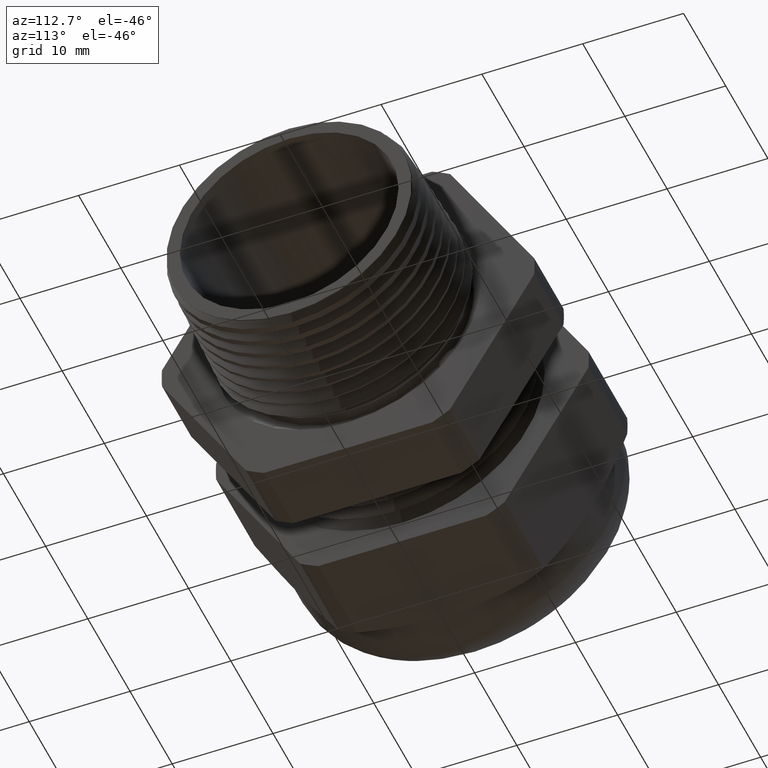
[diagram: clean part render]
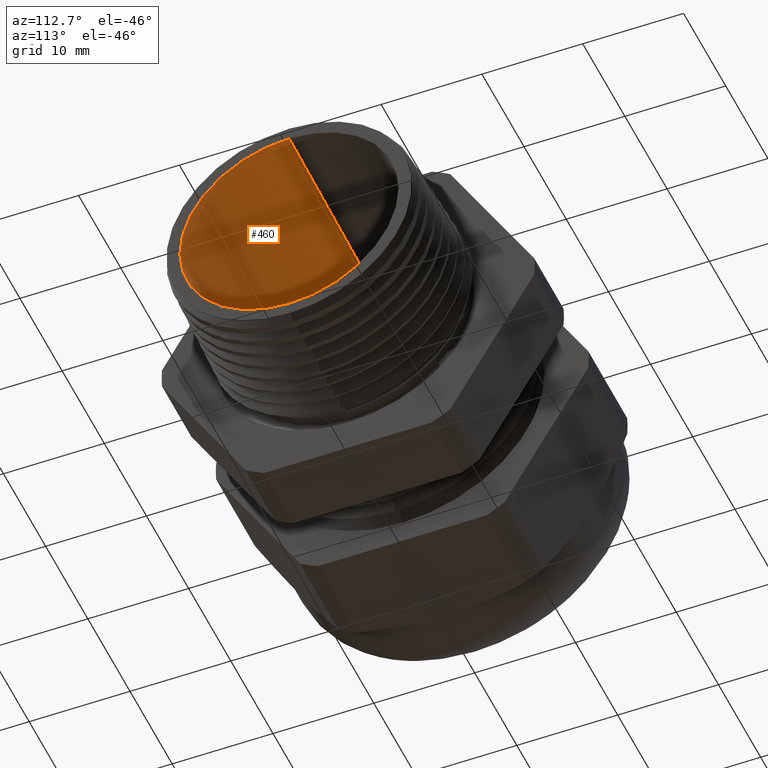
[diagram: same view with one face highlighted and labeled with its STEP entity id]
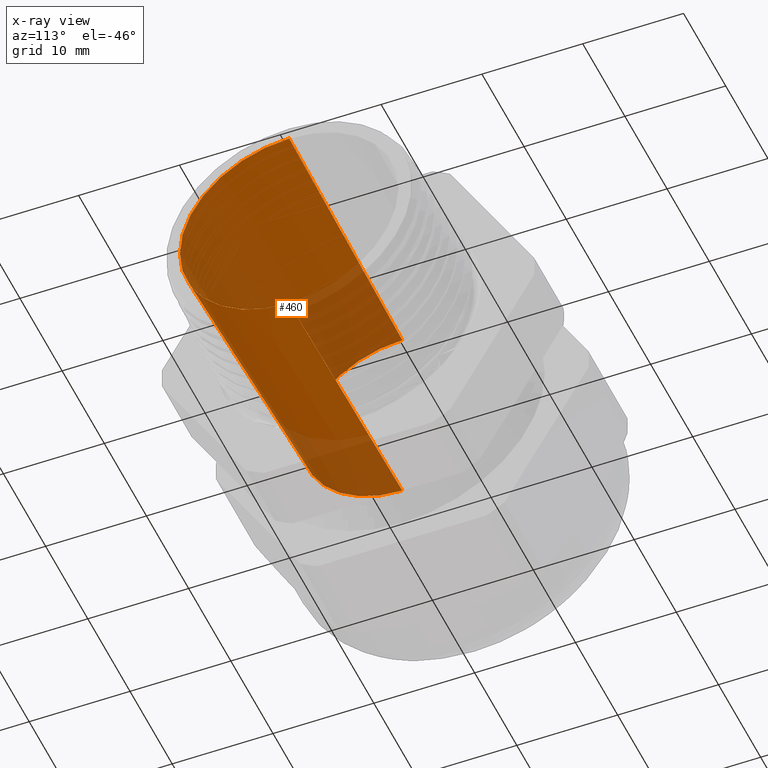
[diagram: x-ray of the same camera — body ghosted, the highlighted face saturated]
A machine part, auxiliary view. The second image highlights one B-rep face of the part: STEP entity #460.
The next image is the same camera in x-ray: the body ghosted, the highlighted face saturated — about 27% of this face is hidden behind the body in this view.
In plain terms, the highlighted conical surface has half-angle 2 deg.
Its self-contained STEP definition (entity closure, byte-faithful):
#446 = ORIENTED_EDGE ( 'NONE', *, *, #522, .F. ) ;
#460 = ADVANCED_FACE ( 'NONE', ( #2228 ), #2227, .F. ) ;
#461 = EDGE_LOOP ( 'NONE', ( #462, #467, #470, #446 ) ) ;
#462 = ORIENTED_EDGE ( 'NONE', *, *, #465, .T. ) ;
#463 = VERTEX_POINT ( 'NONE', #2222 ) ;
#465 = EDGE_CURVE ( 'NONE', #463, #466, #2221, .T. ) ;
#466 = VERTEX_POINT ( 'NONE', #2216 ) ;
#467 = ORIENTED_EDGE ( 'NONE', *, *, #468, .T. ) ;
#468 = EDGE_CURVE ( 'NONE', #466, #469, #2215, .T. ) ;
#469 = VERTEX_POINT ( 'NONE', #2211 ) ;
#470 = ORIENTED_EDGE ( 'NONE', *, *, #471, .F. ) ;
#471 = EDGE_CURVE ( 'NONE', #472, #469, #2210, .T. ) ;
#472 = VERTEX_POINT ( 'NONE', #2268 ) ;
#522 = EDGE_CURVE ( 'NONE', #463, #472, #2365, .T. ) ;
#2206 = DIRECTION ( 'NONE',  ( 0.0000000000000000000, 0.0000000000000000000, 1.000000000000000000 ) ) ;
#2207 = DIRECTION ( 'NONE',  ( -1.000000000000000000, 0.0000000000000000000, 0.0000000000000000000 ) ) ;
#2208 = CARTESIAN_POINT ( 'NONE',  ( 0.5500000000000001600, 0.0000000000000000000, 0.0000000000000000000 ) ) ;
#2209 = AXIS2_PLACEMENT_3D ( 'NONE', #2208, #2207, #2206 ) ;
#2210 = CIRCLE ( 'NONE', #2209, 0.4268705124550377600 ) ;
#2211 = CARTESIAN_POINT ( 'NONE',  ( 0.5500000000000001600, 5.227656067284523900E-017, 0.4268705124550377600 ) ) ;
#2212 = DIRECTION ( 'NONE',  ( 0.9993908270190957600, 4.273955692857232700E-018, 0.03489949670250171200 ) ) ;
#2213 = VECTOR ( 'NONE', #2212, 39.37007874015748900 ) ;
#2214 = CARTESIAN_POINT ( 'NONE',  ( -0.5058333333333333600, 4.776122516674677400E-017, 0.3900000000000000100 ) ) ;
#2215 = LINE ( 'NONE', #2214, #2213 ) ;
#2216 = CARTESIAN_POINT ( 'NONE',  ( -0.5058333333333333600, 0.0000000000000000000, 0.3900000000000000100 ) ) ;
#2217 = DIRECTION ( 'NONE',  ( 0.0000000000000000000, 0.0000000000000000000, 1.000000000000000000 ) ) ;
#2218 = DIRECTION ( 'NONE',  ( -1.000000000000000000, 0.0000000000000000000, 0.0000000000000000000 ) ) ;
#2219 = CARTESIAN_POINT ( 'NONE',  ( -0.5058333333333333600, 0.0000000000000000000, 0.0000000000000000000 ) ) ;
#2220 = AXIS2_PLACEMENT_3D ( 'NONE', #2219, #2218, #2217 ) ;
#2221 = CIRCLE ( 'NONE', #2220, 0.3900000000000000100 ) ;
#2222 = CARTESIAN_POINT ( 'NONE',  ( -0.5058333333333333600, 4.776122516674677400E-017, -0.3900000000000000100 ) ) ;
#2223 = DIRECTION ( 'NONE',  ( 0.0000000000000000000, 0.0000000000000000000, -1.000000000000000000 ) ) ;
#2224 = DIRECTION ( 'NONE',  ( 1.000000000000000000, 0.0000000000000000000, 0.0000000000000000000 ) ) ;
#2225 = CARTESIAN_POINT ( 'NONE',  ( -0.5058333333333333600, 0.0000000000000000000, 0.0000000000000000000 ) ) ;
#2226 = AXIS2_PLACEMENT_3D ( 'NONE', #2225, #2224, #2223 ) ;
#2227 = CONICAL_SURFACE ( 'NONE', #2226, 0.3900000000000000100, 0.03490658503988733300 ) ;
#2228 = FACE_OUTER_BOUND ( 'NONE', #461, .T. ) ;
#2268 = CARTESIAN_POINT ( 'NONE',  ( 0.5500000000000001600, 0.0000000000000000000, -0.4268705124550377600 ) ) ;
#2362 = DIRECTION ( 'NONE',  ( 0.9993908270190957600, 0.0000000000000000000, -0.03489949670250171200 ) ) ;
#2363 = VECTOR ( 'NONE', #2362, 39.37007874015748900 ) ;
#2364 = CARTESIAN_POINT ( 'NONE',  ( -0.5058333333333333600, 0.0000000000000000000, -0.3900000000000000100 ) ) ;
#2365 = LINE ( 'NONE', #2364, #2363 ) ;